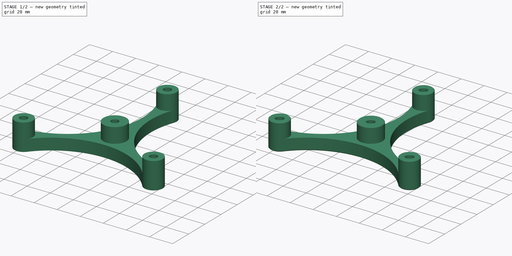
[diagram: build sequence overview — one tinted view per stage of 2, left to right]
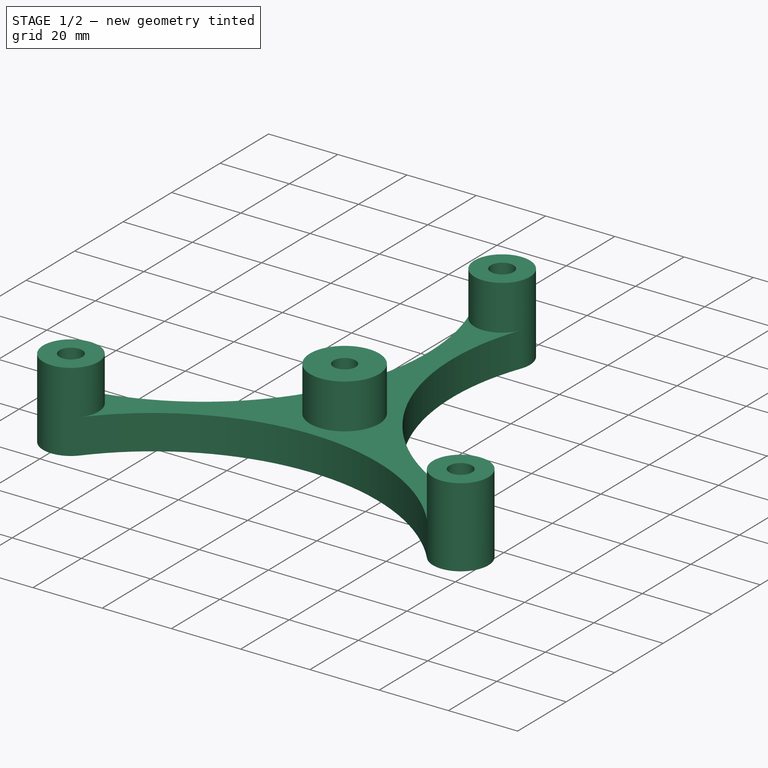
[diagram: stage 1 of 2 — iso view after this stage's code; geometry added in this stage tinted green]
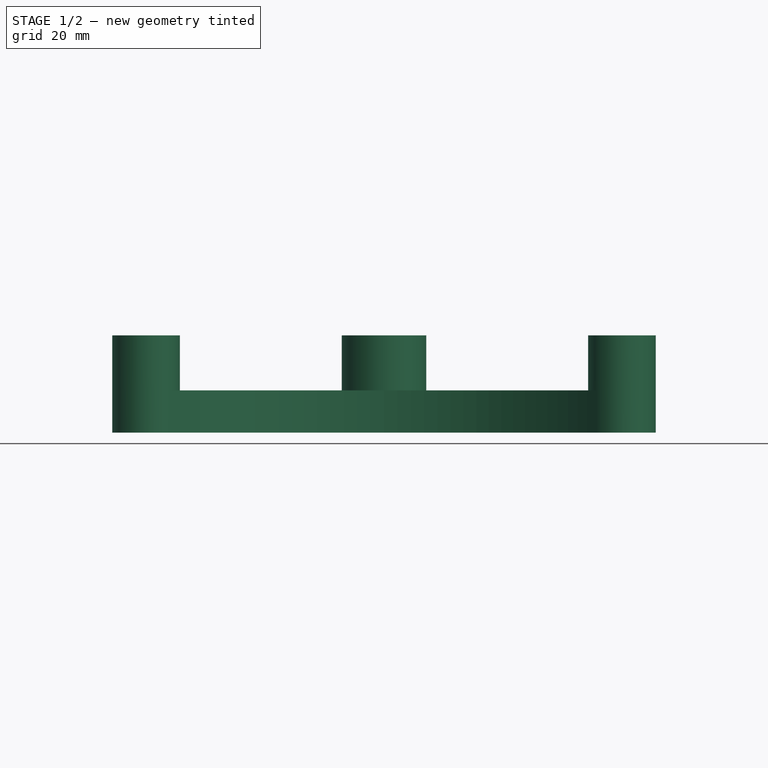
[diagram: stage 1 of 2 — front view after this stage's code; geometry added in this stage tinted green]
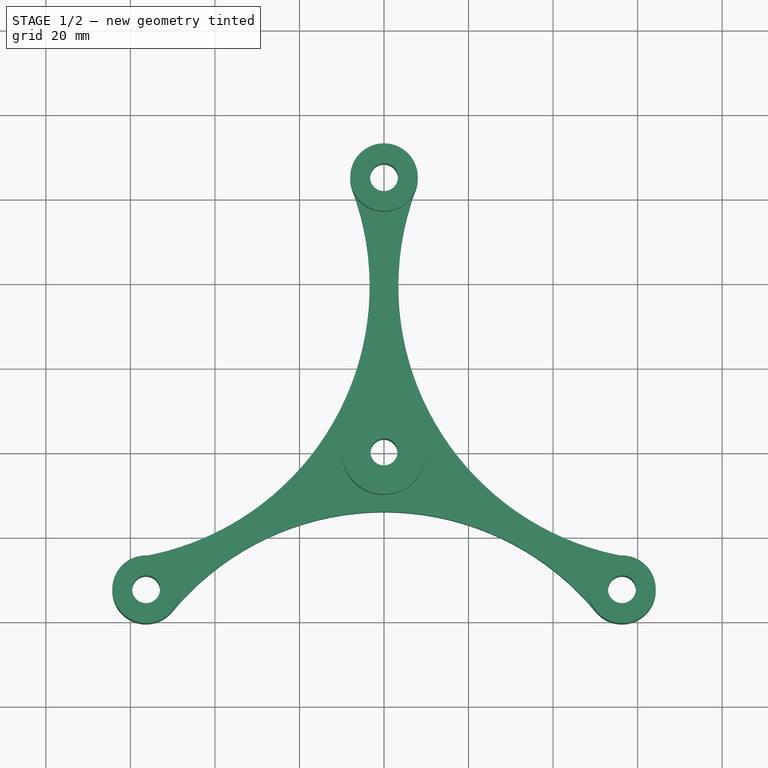
[diagram: stage 1 of 2 — top view after this stage's code; geometry added in this stage tinted green]
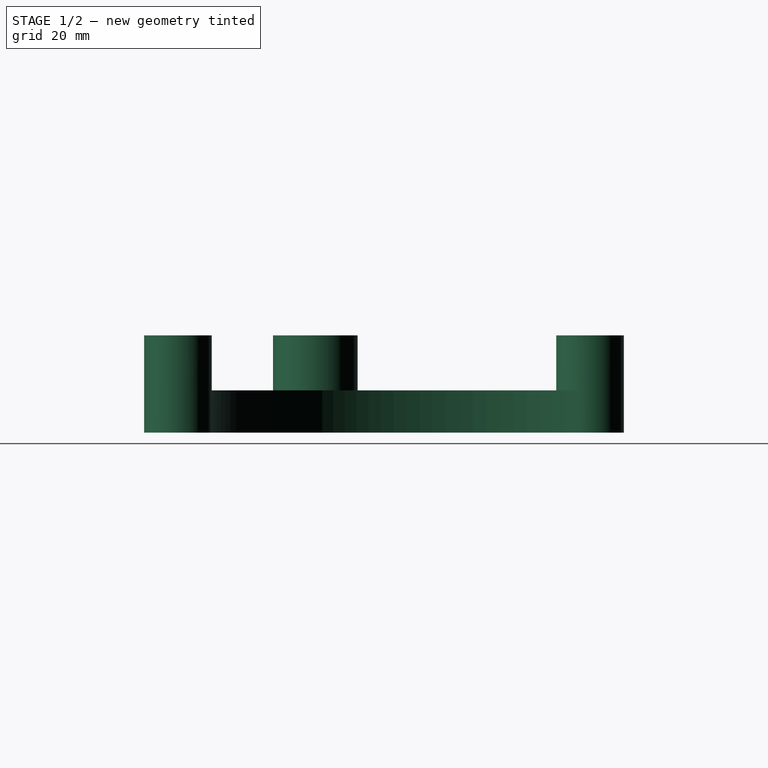
[diagram: stage 1 of 2 — right view after this stage's code; geometry added in this stage tinted green]
FCSTD DOCUMENT  (FreeCAD 2024.1R35694 (Git))
Label: spool holder
License: All rights reserved
LicenseURL: http://en.wikipedia.org/wiki/All_rights_reserved
objects: Sketcher::SketchObject×3, PartDesign::Pad×2, PartDesign::Chamfer×1, PartDesign::Body×1
note: 10 computed .brp shape members not serialized (recipe doc carries the construction recipe); baked Part::Feature solids carry a one-line shape summary decoded from their .brp

FEATURE [Sketcher::SketchObject] Sketch
  FullyConstrained = true
  MapMode = 5
  Support = -> [XY_Plane]
  sketch-geometry (16):
    g0: Circle CenterX=0 CenterY=0 CenterZ=0 NormalX=0 NormalY=0 NormalZ=1 AngleXU=0 Radius=3.2
    g1: LineSegment StartX=-5.4e-15 StartY=65 StartZ=0 EndX=-56.2917 EndY=-32.5 EndZ=0
    g2: LineSegment StartX=-56.2917 StartY=-32.5 StartZ=0 EndX=56.2917 EndY=-32.5 EndZ=0
    g3: LineSegment StartX=56.2917 StartY=-32.5 StartZ=0 EndX=-1.25e-14 EndY=65 EndZ=0
    g4: Circle CenterX=-5.4e-15 CenterY=65 CenterZ=0 NormalX=0 NormalY=0 NormalZ=1 AngleXU=0 Radius=3.3
    g5: Circle CenterX=56.2917 CenterY=-32.5 CenterZ=0 NormalX=0 NormalY=0 NormalZ=1 AngleXU=0 Radius=3.3
    g6: Circle CenterX=-56.2917 CenterY=-32.5 CenterZ=0 NormalX=0 NormalY=0 NormalZ=1 AngleXU=0 Radius=3.3
    g7: Circle CenterX=0 CenterY=0 CenterZ=0 NormalX=0 NormalY=0 NormalZ=1 AngleXU=0 Radius=55
    g8: Circle CenterX=0 CenterY=0 CenterZ=0 NormalX=0 NormalY=0 NormalZ=1 AngleXU=0 Radius=175
    g9: ArcOfCircle CenterX=-5.4e-15 CenterY=65 CenterZ=0 NormalX=0 NormalY=0 NormalZ=1 AngleXU=0 Radius=8 StartAngle=5.92619 EndAngle=9.78178
    g10: ArcOfCircle CenterX=56.2917 CenterY=-32.5 CenterZ=0 NormalX=0 NormalY=0 NormalZ=1 AngleXU=0 Radius=8 StartAngle=3.83179 EndAngle=7.68738
    g11: ArcOfCircle CenterX=-56.2917 CenterY=-32.5 CenterZ=0 NormalX=0 NormalY=0 NormalZ=1 AngleXU=0 Radius=8 StartAngle=1.7374 EndAngle=5.59299
    g12: ArcOfCircle CenterX=-68.3974 CenterY=39.4892 CenterZ=0 NormalX=0 NormalY=0 NormalZ=1 AngleXU=0 Radius=65 StartAngle=4.87899 EndAngle=6.64018
    g13: ArcOfCircle CenterX=-1.23e-14 CenterY=-78.9785 CenterZ=0 NormalX=0 NormalY=0 NormalZ=1 AngleXU=0 Radius=65 StartAngle=0.6902 EndAngle=2.45139
    g14: ArcOfCircle CenterX=68.3974 CenterY=39.4892 CenterZ=0 NormalX=0 NormalY=0 NormalZ=1 AngleXU=0 Radius=65 StartAngle=2.7846 EndAngle=4.54579
    g15: Circle CenterX=0 CenterY=0 CenterZ=0 NormalX=0 NormalY=0 NormalZ=1 AngleXU=0 Radius=65
  constraints (38):
    c: Diameter(g0) = 6.4
    c: Coincident(g1,g2)
    c: Coincident(g2,g3)
    c: Coincident(g3,g1)
    c: Equal(g1,g2)
    c: Equal(g1,g3)
    c: PointOnObject(g3,g-2)
    c: Coincident(g4,g1)
    c: Coincident(g5,g2)
    c: Coincident(g6,g1)
    c: Equal(g6,g4)
    c: Equal(g6,g5)
    c: Diameter(g6) = 6.6
    c: Radius(g7) = 55
    c: Radius(g8) = 175
    c: Coincident(g9,g4)
    c: Coincident(g10,g5)
    c: Coincident(g11,g6)
    c: Equal(g11,g10)
    c: Equal(g11,g9)
    c: Radius(g11) = 8
    c: Coincident(g0,g7)
    c: Coincident(g0,g8)
    c: Coincident(g0,g-1)
    c: Tangent(g12,g9) = 1.5708
    c: Tangent(g14,g9) = 1.5708
    c: Tangent(g14,g10) = 1.5708
    c: Tangent(g13,g10) = 1.5708
    c: Tangent(g13,g11) = 1.5708
    c: Tangent(g12,g11) = 1.5708
    c: Coincident(g15,g0)
    c: PointOnObject(g5,g15)
    c: PointOnObject(g6,g15)
    c: PointOnObject(g4,g15)
    c: Radius(g15) = 65
    c: Radius(g13) = 65
    c: Equal(g13,g14)
    c: Equal(g14,g12)
FEATURE [PartDesign::Pad] Pad
  Direction = (0,0,1)
  Length = 10
  Length2 = 10
  Profile = -> Sketch
  ReferenceAxis = -> Sketch [N_Axis]
  Type = 0
FEATURE [Sketcher::SketchObject] Sketch001
  ExternalGeometry = -> [Pad]
  FullyConstrained = false
  MapMode = 5
  Placement = pos=(0,0,10) rot=(0,0,1;0rad)
  Support = -> [Pad]
  sketch-geometry (8):
    g0: Circle CenterX=0 CenterY=0 CenterZ=0 NormalX=0 NormalY=0 NormalZ=1 AngleXU=0 Radius=10
    g1: Circle CenterX=-56.2917 CenterY=-32.5 CenterZ=0 NormalX=0 NormalY=0 NormalZ=1 AngleXU=0 Radius=8
    g2: Circle CenterX=56.2917 CenterY=-32.5 CenterZ=0 NormalX=0 NormalY=0 NormalZ=1 AngleXU=0 Radius=8
    g3: Circle CenterX=0 CenterY=65 CenterZ=0 NormalX=0 NormalY=0 NormalZ=1 AngleXU=0 Radius=8
    g4: Circle CenterX=0 CenterY=65 CenterZ=0 NormalX=0 NormalY=0 NormalZ=1 AngleXU=0 Radius=3.3
    g5: Circle CenterX=56.2917 CenterY=-32.5 CenterZ=0 NormalX=0 NormalY=0 NormalZ=1 AngleXU=0 Radius=3.3
    g6: Circle CenterX=-56.2917 CenterY=-32.5 CenterZ=0 NormalX=0 NormalY=0 NormalZ=1 AngleXU=0 Radius=3.3
    g7: Circle CenterX=0 CenterY=0 CenterZ=0 NormalX=0 NormalY=0 NormalZ=1 AngleXU=0 Radius=3.2
  constraints (15):
    c: Radius(g0) = 10
    c: Coincident(g0,g-1)
    c: Coincident(g1,g-7)
    c: PointOnObject(g-7,g1)
    c: Coincident(g2,g-4)
    c: PointOnObject(g-3,g2)
    c: Coincident(g3,g-5)
    c: PointOnObject(g-3,g3)
    c: Coincident(g4,g3)
    c: Coincident(g5,g2)
    c: Coincident(g6,g1)
    c: Equal(g6,g-6)
    c: Equal(g5,g-4)
    c: Equal(g4,g-5)
    c: Coincident(g7,g0)
FEATURE [PartDesign::Pad] Pad001
  BaseFeature = -> Pad
  Direction = (0,0,1)
  Length = 13
  Length2 = 10
  Profile = -> Sketch001
  ReferenceAxis = -> Sketch001 [N_Axis]
  Refine = true
  Type = 0
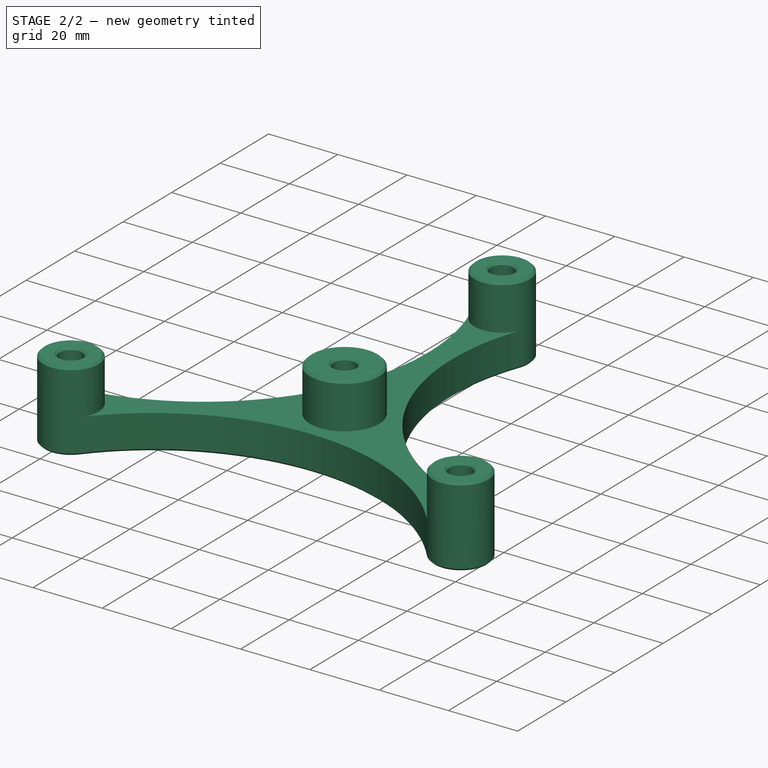
[diagram: stage 2 of 2 — iso view after this stage's code; geometry added in this stage tinted green]
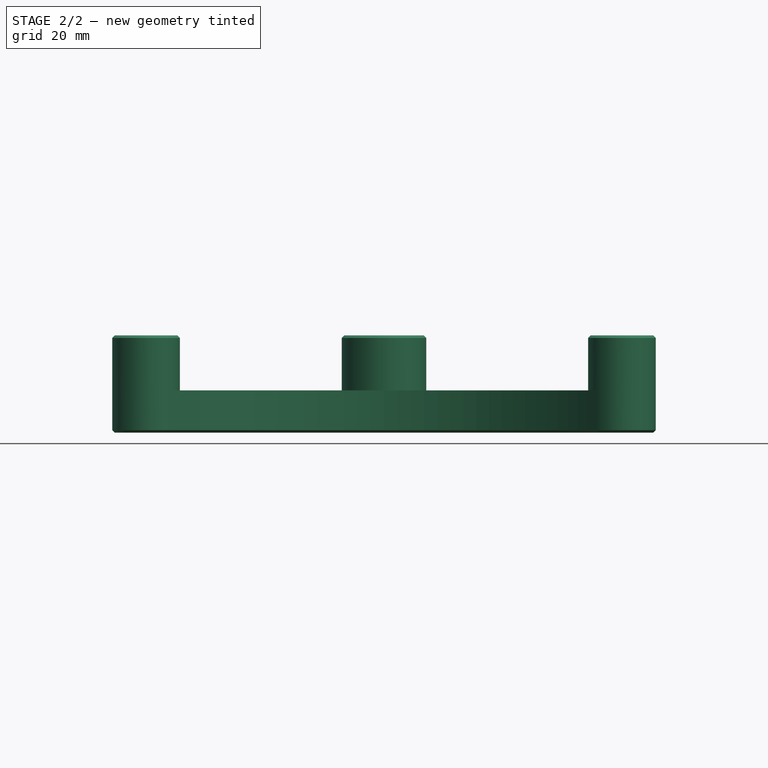
[diagram: stage 2 of 2 — front view after this stage's code; geometry added in this stage tinted green]
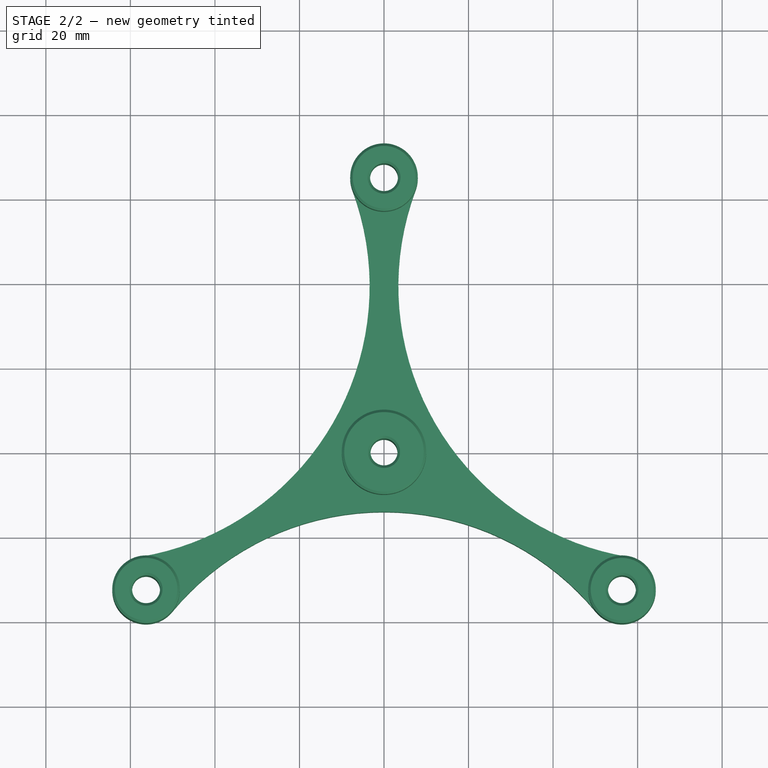
[diagram: stage 2 of 2 — top view after this stage's code; geometry added in this stage tinted green]
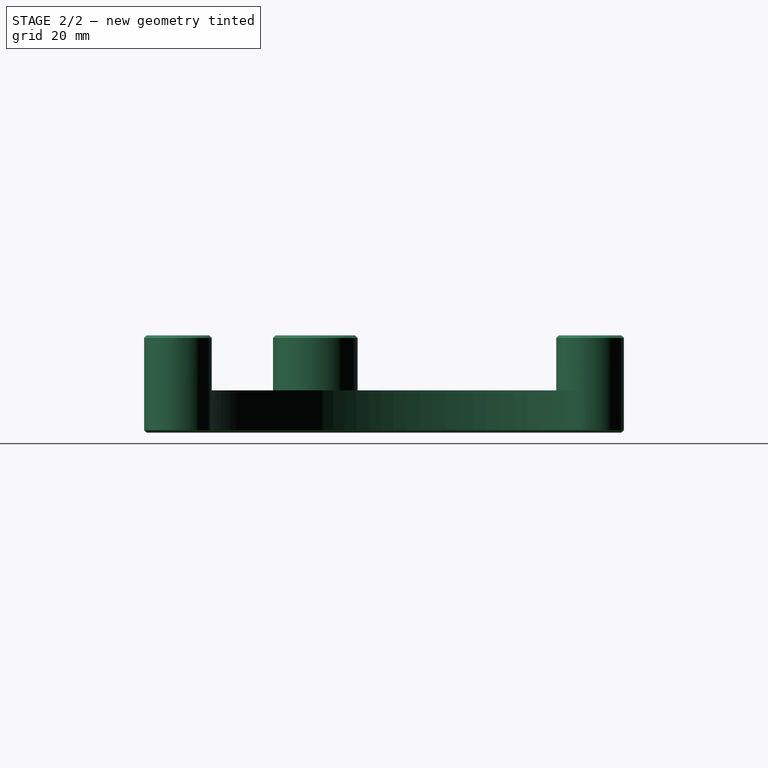
[diagram: stage 2 of 2 — right view after this stage's code; geometry added in this stage tinted green]
FEATURE [PartDesign::Chamfer] Chamfer
  Angle = 45
  Base = -> Pad001 [Face13,Face7,Face9,Face11,Face2]
  BaseFeature = -> Pad001
  ChamferType = 0
  FlipDirection = false
  Size = 0.6
  Size2 = 1
  SupportTransform = false
  UseAllEdges = false
FEATURE [PartDesign::Body] Body
  Group = -> [Sketch,Pad,Sketch001,Pad001,Chamfer]
  Origin = -> Origin
  Tip = -> Chamfer
FEATURE [Sketcher::SketchObject] Sketch002  label="wheel dxf"
  FullyConstrained = true
  MapMode = 5
  Support = -> [XY_Plane]
  sketch-geometry (21):
    g0: Circle CenterX=0 CenterY=0 CenterZ=0 NormalX=0 NormalY=0 NormalZ=1 AngleXU=0 Radius=3.2
    g1: LineSegment StartX=0 StartY=65 StartZ=0 EndX=-56.2917 EndY=-32.5 EndZ=0
    g2: LineSegment StartX=-56.2917 StartY=-32.5 StartZ=0 EndX=56.2917 EndY=-32.5 EndZ=0
    g3: LineSegment StartX=56.2917 StartY=-32.5 StartZ=0 EndX=-5.4e-15 EndY=65 EndZ=0
    g4: Circle CenterX=0 CenterY=65 CenterZ=0 NormalX=0 NormalY=0 NormalZ=1 AngleXU=0 Radius=3.3
    g5: Circle CenterX=56.2917 CenterY=-32.5 CenterZ=0 NormalX=0 NormalY=0 NormalZ=1 AngleXU=0 Radius=3.3
    g6: Circle CenterX=-56.2917 CenterY=-32.5 CenterZ=0 NormalX=0 NormalY=0 NormalZ=1 AngleXU=0 Radius=3.3
    g7: ArcOfCircle CenterX=0 CenterY=0 CenterZ=0 NormalX=0 NormalY=0 NormalZ=1 AngleXU=0 Radius=185 StartAngle=1.90109 EndAngle=4.38209
    g8: ArcOfCircle CenterX=0 CenterY=65 CenterZ=0 NormalX=0 NormalY=0 NormalZ=1 AngleXU=0 Radius=8 StartAngle=5.92619 EndAngle=9.78178
    g9: ArcOfCircle CenterX=56.2917 CenterY=-32.5 CenterZ=0 NormalX=0 NormalY=0 NormalZ=1 AngleXU=0 Radius=8 StartAngle=3.83179 EndAngle=7.68738
    g10: ArcOfCircle CenterX=-56.2917 CenterY=-32.5 CenterZ=0 NormalX=0 NormalY=0 NormalZ=1 AngleXU=0 Radius=8 StartAngle=1.7374 EndAngle=5.59299
    g11: ArcOfCircle CenterX=-68.3974 CenterY=39.4892 CenterZ=0 NormalX=0 NormalY=0 NormalZ=1 AngleXU=0 Radius=65 StartAngle=4.87899 EndAngle=6.64018
    g12: ArcOfCircle CenterX=1.5e-15 CenterY=-78.9785 CenterZ=0 NormalX=0 NormalY=0 NormalZ=1 AngleXU=0 Radius=65 StartAngle=0.6902 EndAngle=2.45139
    g13: ArcOfCircle CenterX=68.3974 CenterY=39.4892 CenterZ=0 NormalX=0 NormalY=0 NormalZ=1 AngleXU=0 Radius=65 StartAngle=2.7846 EndAngle=4.54579
    g14: Circle CenterX=0 CenterY=0 CenterZ=0 NormalX=0 NormalY=0 NormalZ=1 AngleXU=0 Radius=65
    g15: Circle CenterX=56.2917 CenterY=-32.5 CenterZ=0 NormalX=0 NormalY=0 NormalZ=1 AngleXU=0 Radius=2.6
    g16: Circle CenterX=-56.2917 CenterY=-32.5 CenterZ=0 NormalX=0 NormalY=0 NormalZ=1 AngleXU=0 Radius=2.6
    g17: Circle CenterX=0 CenterY=65 CenterZ=0 NormalX=0 NormalY=0 NormalZ=1 AngleXU=0 Radius=2.6
    g18: LineSegment StartX=-60 StartY=175 StartZ=0 EndX=60 EndY=175 EndZ=0
    g19: LineSegment StartX=-60 StartY=-175 StartZ=0 EndX=60 EndY=-175 EndZ=0
    g20: ArcOfCircle CenterX=0 CenterY=0 CenterZ=0 NormalX=0 NormalY=0 NormalZ=1 AngleXU=0 Radius=185 StartAngle=5.04269 EndAngle=7.52368
  constraints (52):
    c: Diameter(g0) = 6.4
    c: Coincident(g1,g2)
    c: Coincident(g2,g3)
    c: Coincident(g3,g1)
    c: Equal(g1,g2)
    c: Equal(g1,g3)
    c: PointOnObject(g3,g-2)
    c: Coincident(g4,g1)
    c: Coincident(g5,g2)
    c: Coincident(g6,g1)
    c: Equal(g6,g4)
    c: Equal(g6,g5)
    c: Diameter(g6) = 6.6
    c: Radius(g7) = 185
    c: Coincident(g8,g4)
    c: Coincident(g9,g5)
    c: Coincident(g10,g6)
    c: Equal(g10,g9)
    c: Equal(g10,g8)
    c: Radius(g10) = 8
    c: Coincident(g0,g7)
    c: Coincident(g0,g-1)
    c: Tangent(g11,g8) = 1.5708
    c: Tangent(g13,g8) = 1.5708
    c: Tangent(g13,g9) = 1.5708
    c: Tangent(g12,g9) = 1.5708
    c: Tangent(g12,g10) = 1.5708
    c: Tangent(g11,g10) = 1.5708
    c: Coincident(g14,g0)
    c: PointOnObject(g5,g14)
    c: PointOnObject(g6,g14)
    c: PointOnObject(g4,g14)
    c: Radius(g14) = 65
    c: Radius(g12) = 65
    c: Equal(g12,g13)
    c: Equal(g13,g11)
    c: Coincident(g15,g2)
    c: Coincident(g16,g1)
    c: Coincident(g17,g1)
    c: Diameter(g17) = 5.2
    c: Equal(g17,g15)
    c: Equal(g15,g16)
    c: Horizontal(g18)
    c: Horizontal(g19)
    c: Vertical(g19,g18)
    c: DistanceY(g19,g18) = 350
    c: Coincident(g20,g18)
    c: Coincident(g7,g18)
    c: Equal(g7,g20)
    c: Coincident(g7,g19)
    c: Coincident(g20,g19)
    c: Coincident(g7,g20)
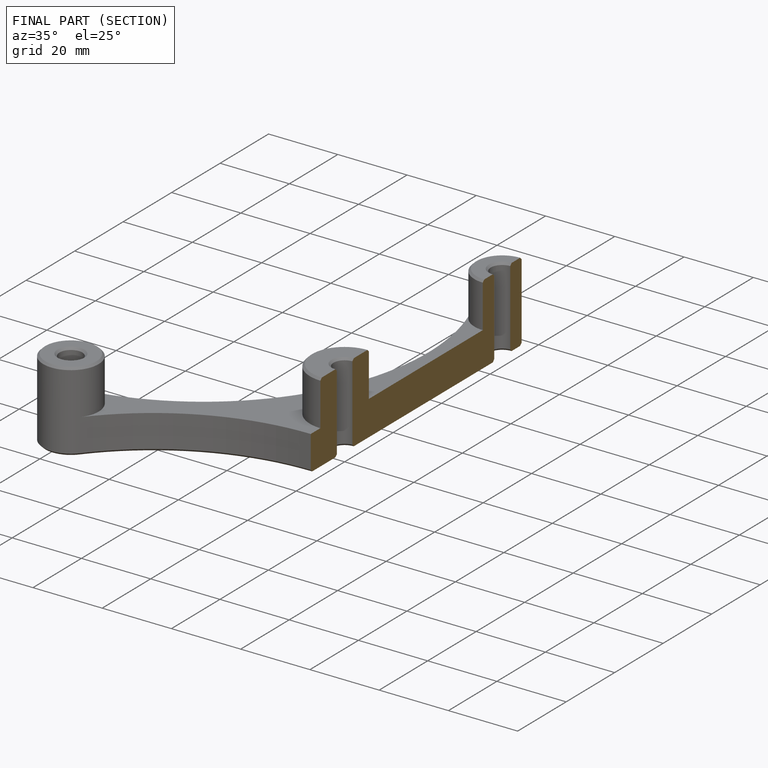
[diagram: finished part — half-section view (interior)]
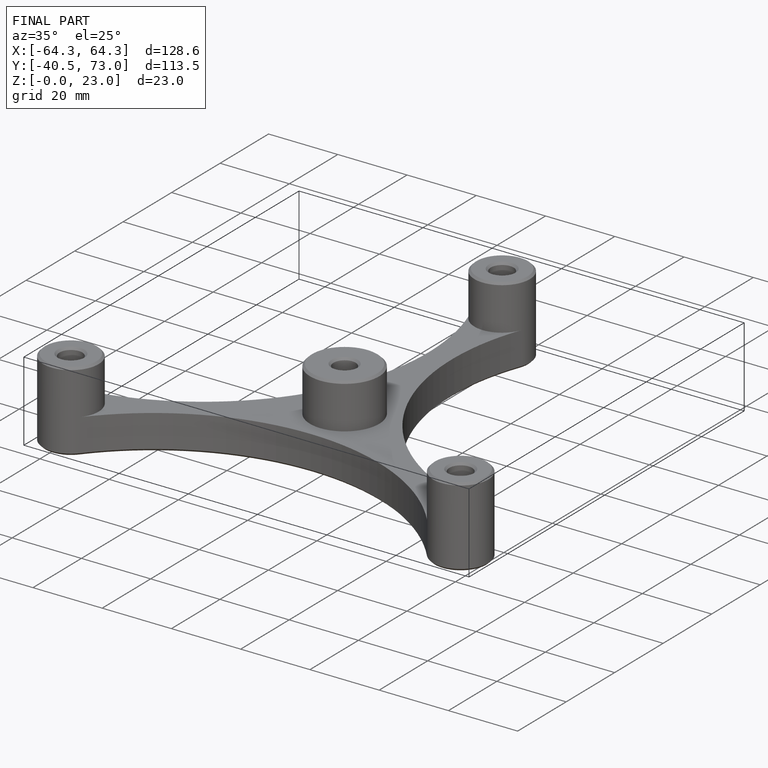
[diagram: finished part — iso view with bounding-box wireframe]
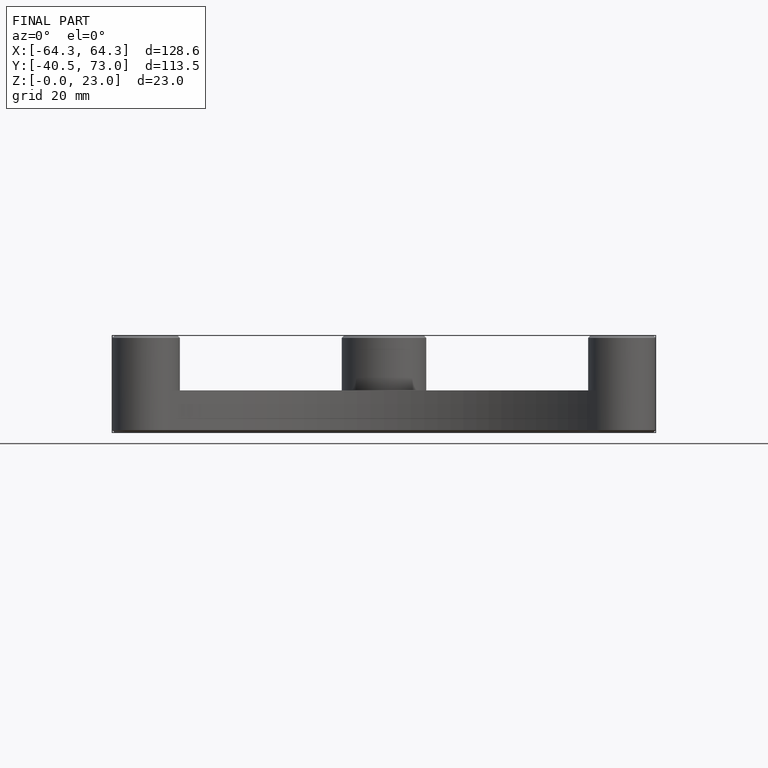
[diagram: finished part — front view with bounding-box wireframe]
